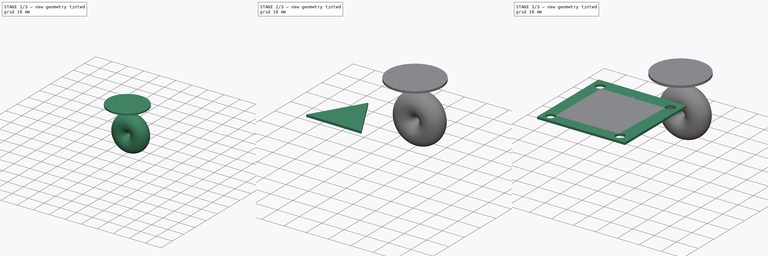
[diagram: build sequence overview — one tinted view per stage of 3, left to right]
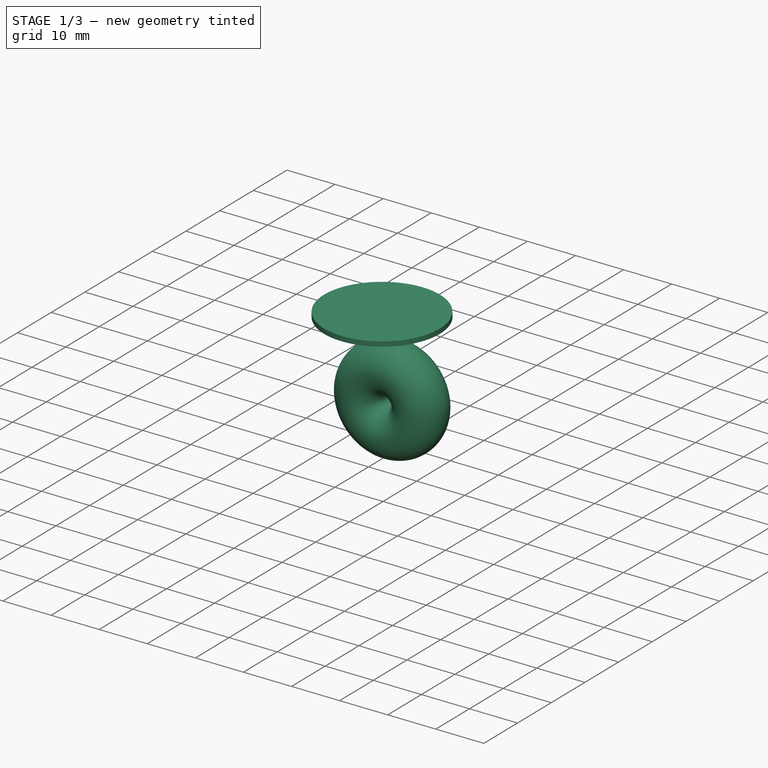
[diagram: stage 1 of 3 — iso view after this stage's code; geometry added in this stage tinted green]
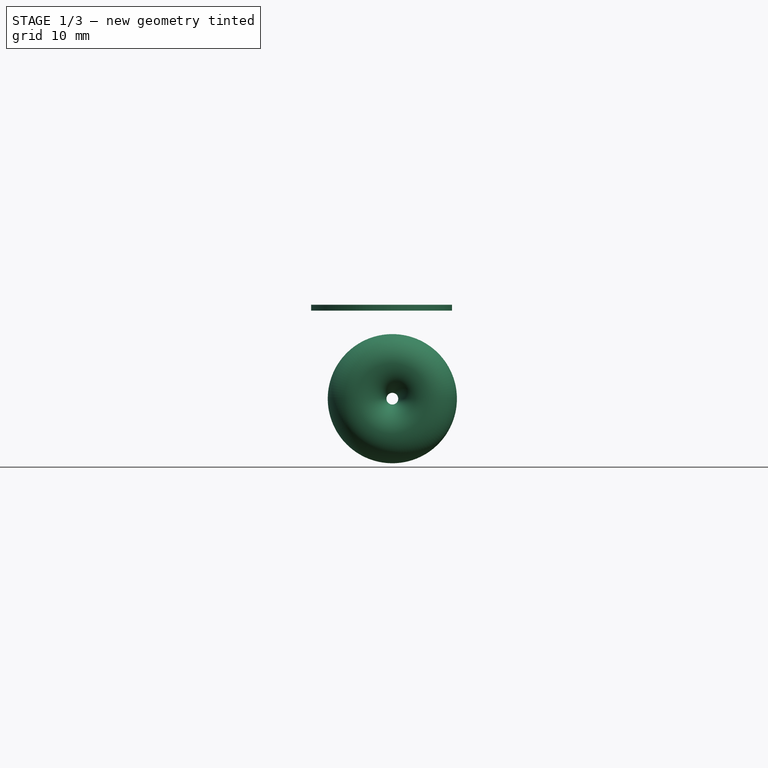
[diagram: stage 1 of 3 — front view after this stage's code; geometry added in this stage tinted green]
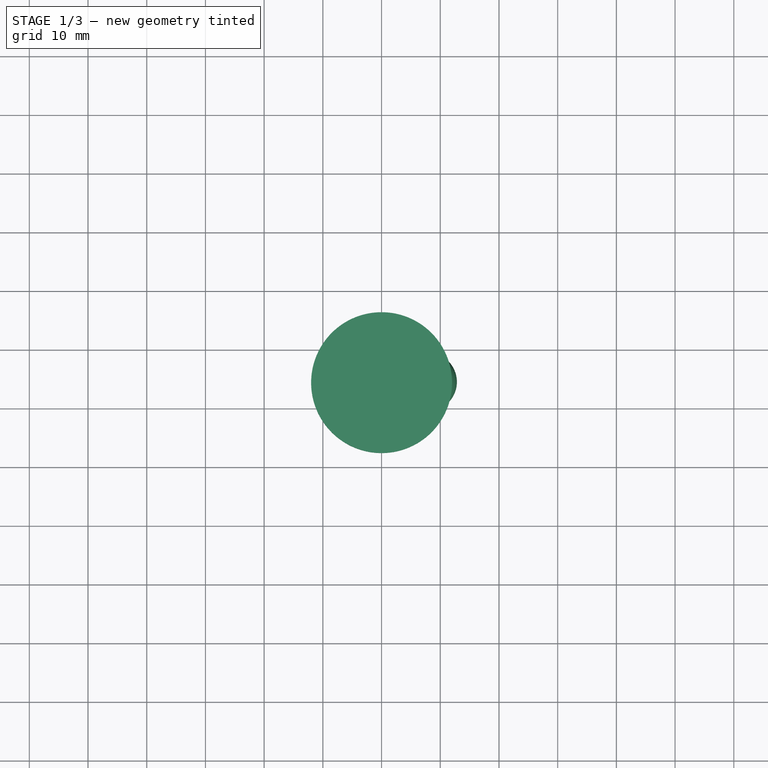
[diagram: stage 1 of 3 — top view after this stage's code; geometry added in this stage tinted green]
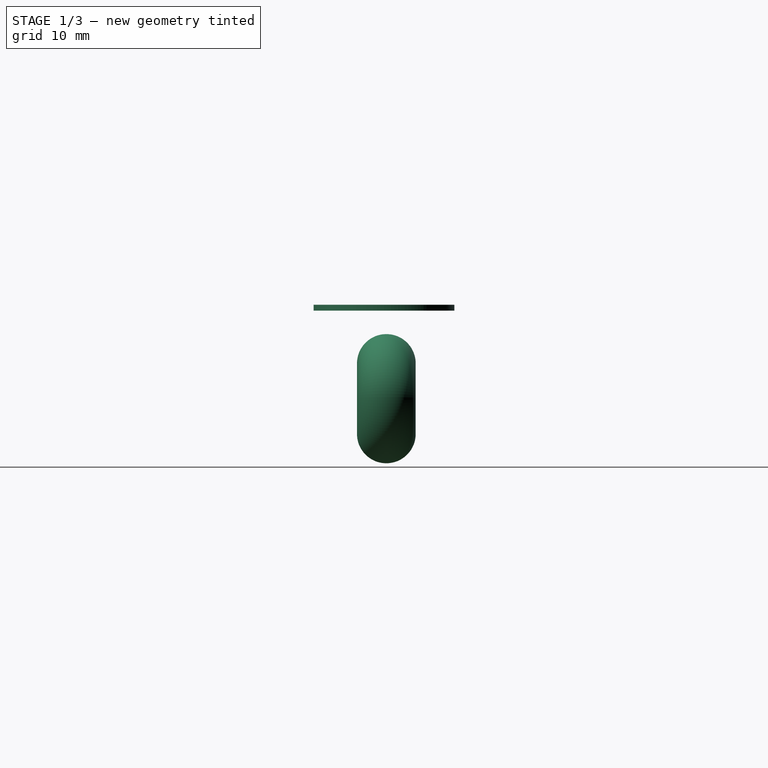
[diagram: stage 1 of 3 — right view after this stage's code; geometry added in this stage tinted green]
FCSTD DOCUMENT  (FreeCAD 0.19R24291 (Git))
Label: rueda_loca
License: All rights reserved
LicenseURL: http://en.wikipedia.org/wiki/All_rights_reserved
objects: Sketcher::SketchObject×3, PartDesign::Pad×3, PartDesign::Body×3, Part::Torus×1, Part::Cylinder×1
note: 14 computed .brp shape members not serialized (recipe doc carries the construction recipe); baked Part::Feature solids carry a one-line shape summary decoded from their .brp

FEATURE [PartDesign::Body] Body002  label="triangle2"
  Group = -> [Sketch003,Pad002]
  Origin = -> Origin002
  Placement = pos=(1,37.9904,-8.23205) rot=(1,0,0;4.71239rad)
  Tip = -> Pad002
FEATURE [Part::Torus] Torus  label="rueda"
  Angle1 = -180
  Angle2 = 180
  Angle3 = 360
  AttacherType = Attacher::AttachEngine3D
  Placement = pos=(1.8355,44.3985,-16) rot=(-0.57735,0.57735,0.57735;2.0944rad)
  Radius1 = 6
  Radius2 = 5
FEATURE [Part::Cylinder] Cylinder  label="base_movil"
  Angle = 360
  AttacherType = Attacher::AttachEngine3D
  Height = 1
  Placement = pos=(0,44,-1) rot=(0,0,1;0rad)
  Radius = 12
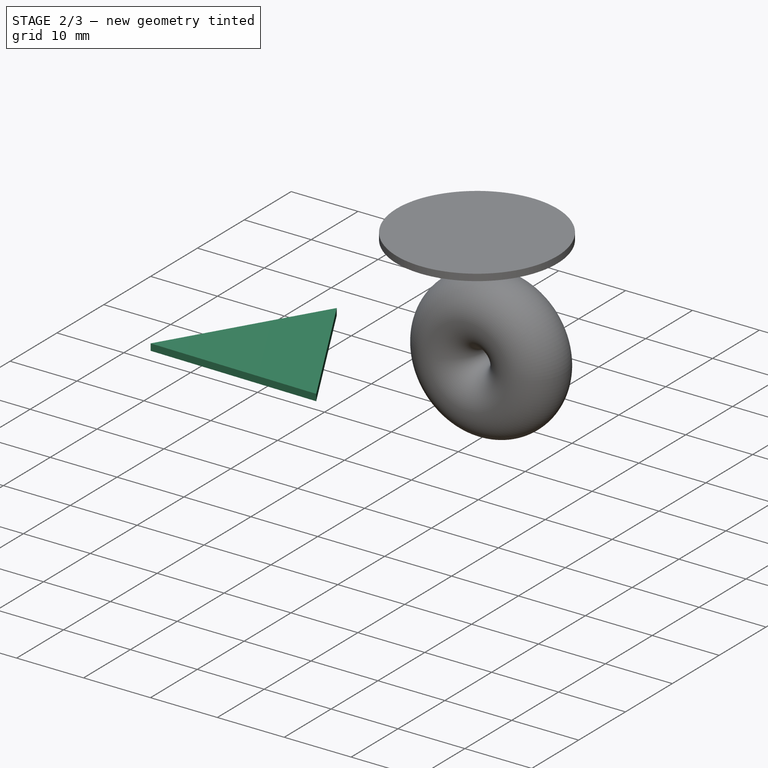
[diagram: stage 2 of 3 — iso view after this stage's code; geometry added in this stage tinted green]
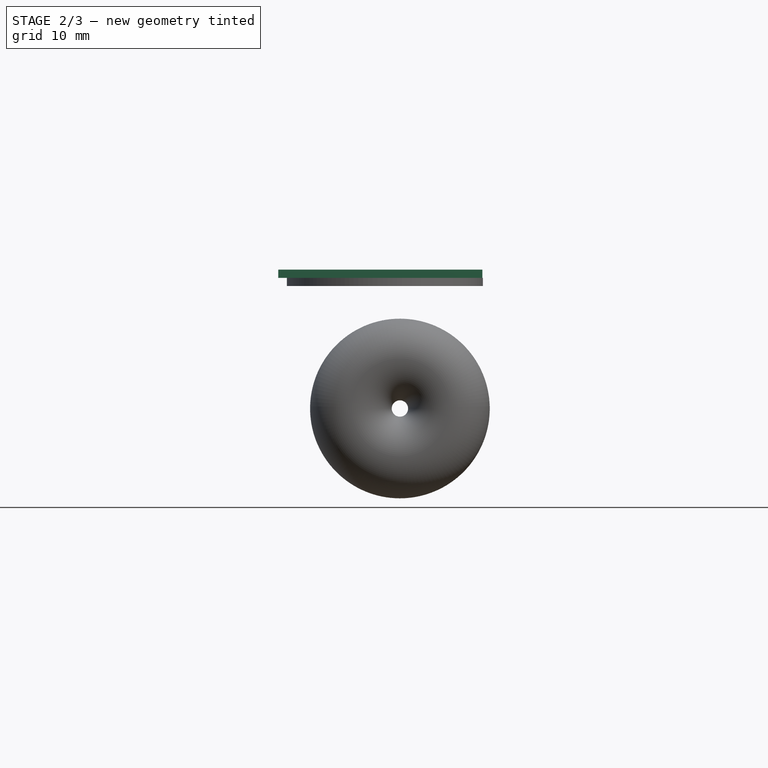
[diagram: stage 2 of 3 — front view after this stage's code; geometry added in this stage tinted green]
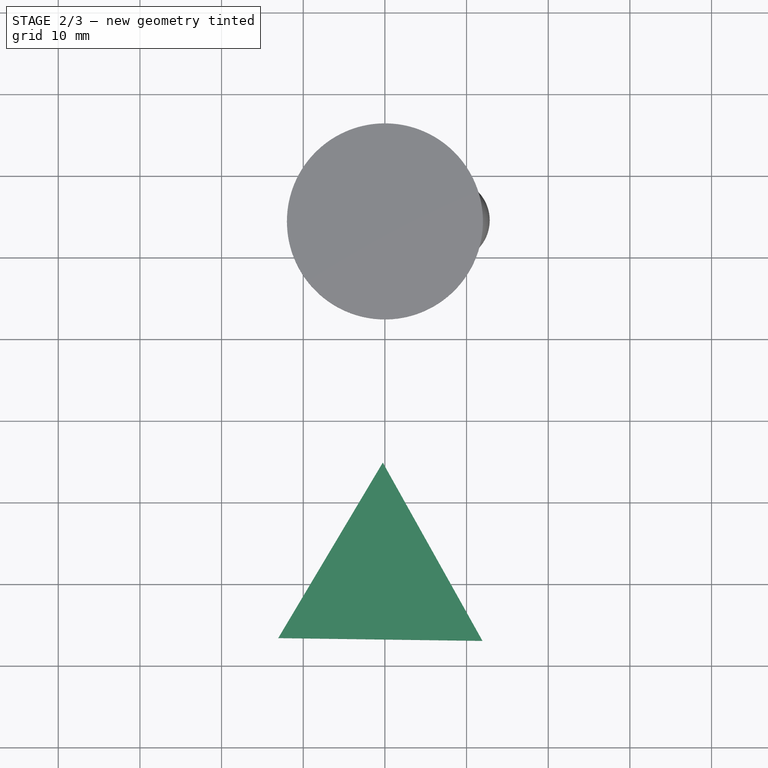
[diagram: stage 2 of 3 — top view after this stage's code; geometry added in this stage tinted green]
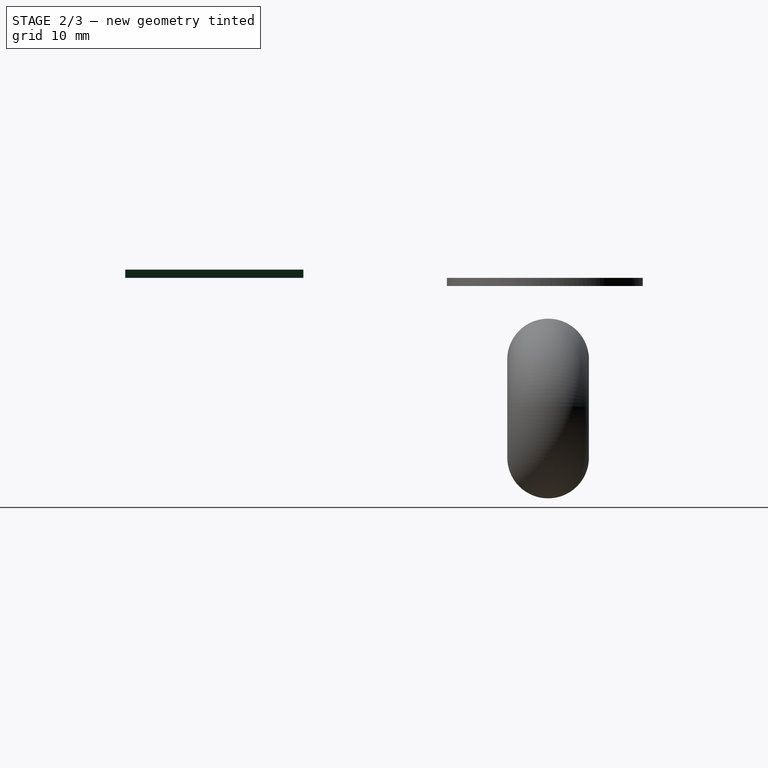
[diagram: stage 2 of 3 — right view after this stage's code; geometry added in this stage tinted green]
FEATURE [PartDesign::Body] Body001  label="triangle1"
  Group = -> [Sketch002,Pad001]
  Origin = -> Origin001
  Placement = pos=(1,50,-9) rot=(1,0,0;4.71239rad)
  Tip = -> Pad001
FEATURE [Sketcher::SketchObject] Sketch003
  FullyConstrained = false
  MapMode = 5
  Support = -> [XY_Plane002]
  sketch-geometry (4):
    g0: LineSegment StartX=11.942 StartY=-7.38734 StartZ=0 EndX=-0.260369 EndY=14.4324 EndZ=0
    g1: LineSegment StartX=-0.260369 StartY=14.4324 StartZ=0 EndX=-13.0556 EndY=-7.04506 EndZ=0
    g2: LineSegment StartX=-13.0556 StartY=-7.04506 StartZ=0 EndX=11.942 EndY=-7.38734 EndZ=0
    g3: Circle CenterX=-0.457983 CenterY=0 CenterZ=0 NormalX=0 NormalY=0 NormalZ=1 AngleXU=0 Radius=14.4338
  constraints (10):
    c: Coincident(g0,g1)
    c: Coincident(g1,g2)
    c: Coincident(g2,g0)
    c: Equal(g0,g1)
    c: Equal(g0,g2)
    c: PointOnObject(g0,g3)
    c: PointOnObject(g1,g3)
    c: PointOnObject(g2,g3)
    c: PointOnObject(g3,g-1)
    c: Distance(g2) = 25
FEATURE [PartDesign::Pad] Pad002
  Direction = (1,1,1)
  Length = 1
  Length2 = 100
  Profile = -> Sketch003
  Type = 0
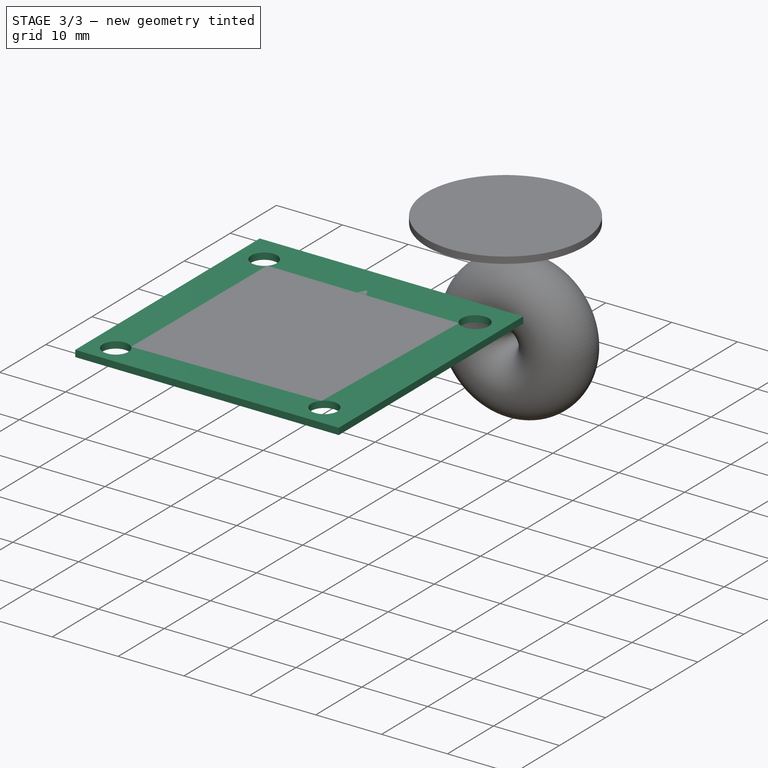
[diagram: stage 3 of 3 — iso view after this stage's code; geometry added in this stage tinted green]
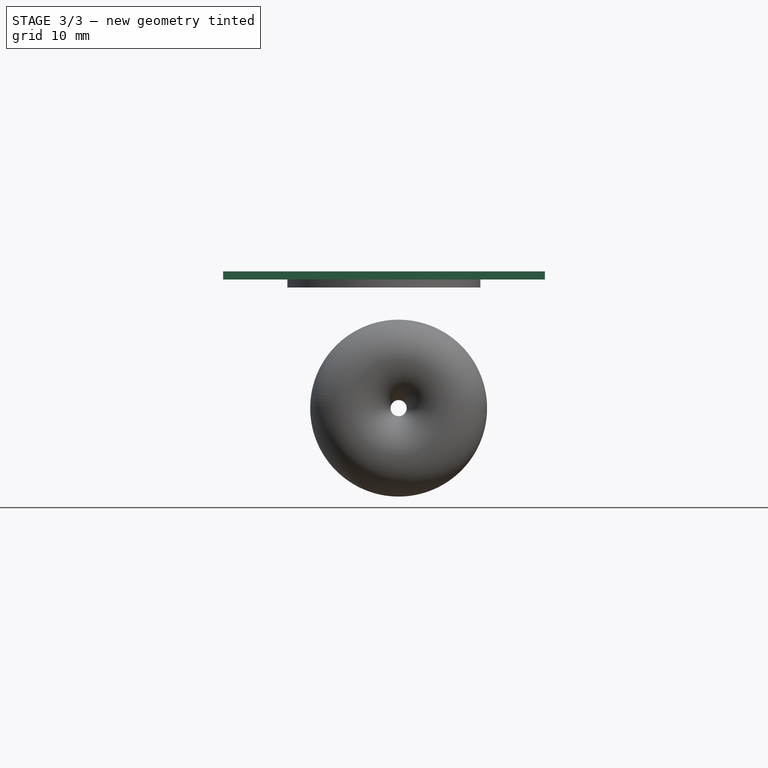
[diagram: stage 3 of 3 — front view after this stage's code; geometry added in this stage tinted green]
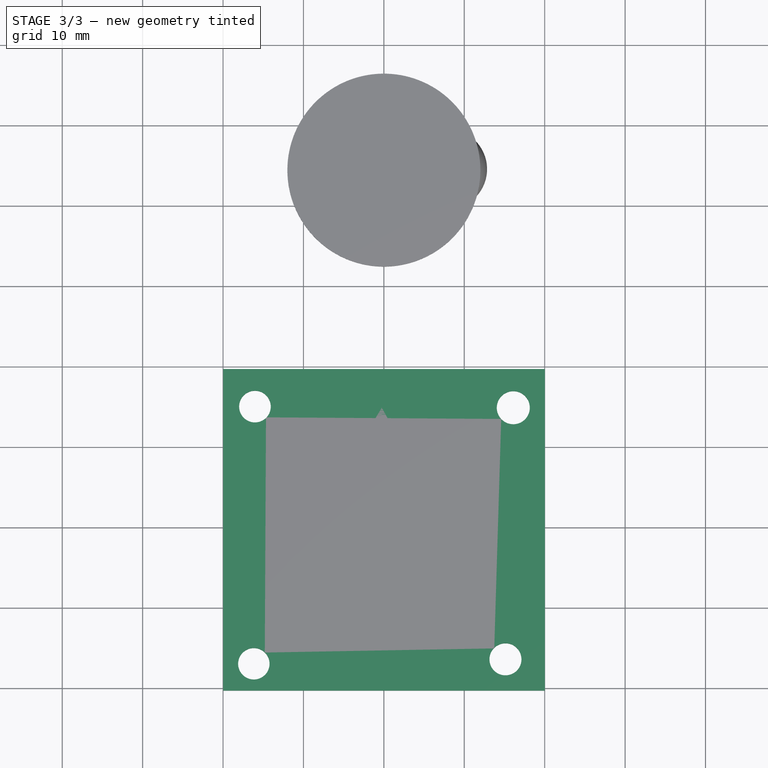
[diagram: stage 3 of 3 — top view after this stage's code; geometry added in this stage tinted green]
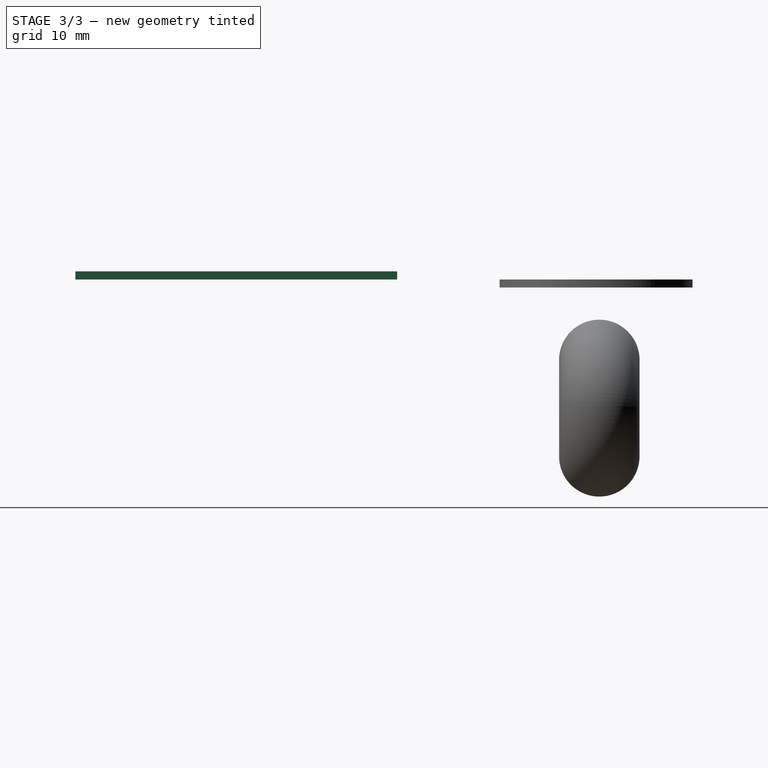
[diagram: stage 3 of 3 — right view after this stage's code; geometry added in this stage tinted green]
FEATURE [Sketcher::SketchObject] Sketch
  FullyConstrained = false
  MapMode = 5
  Support = -> [XY_Plane]
  sketch-geometry (8):
    g0: LineSegment StartX=-19.9829 StartY=19.2492 StartZ=0 EndX=20.0171 EndY=19.2492 EndZ=0
    g1: LineSegment StartX=20.0171 StartY=19.2492 StartZ=0 EndX=20.0171 EndY=-20.7508 EndZ=0
    g2: LineSegment StartX=20.0171 StartY=-20.7508 StartZ=0 EndX=-19.9829 EndY=-20.7508 EndZ=0
    g3: LineSegment StartX=-19.9829 StartY=-20.7508 StartZ=0 EndX=-19.9829 EndY=19.2492 EndZ=0
    g4: Circle CenterX=-16.0323 CenterY=14.5686 CenterZ=0 NormalX=0 NormalY=0 NormalZ=1 AngleXU=0 Radius=1.96692
    g5: Circle CenterX=16.0957 CenterY=14.4295 CenterZ=0 NormalX=0 NormalY=0 NormalZ=1 AngleXU=0 Radius=2.05352
    g6: Circle CenterX=15.1221 CenterY=-16.8639 CenterZ=0 NormalX=0 NormalY=0 NormalZ=1 AngleXU=0 Radius=1.99135
    g7: Circle CenterX=-16.1713 CenterY=-17.4203 CenterZ=0 NormalX=0 NormalY=0 NormalZ=1 AngleXU=0 Radius=1.95211
  constraints (10):
    c: Coincident(g0,g1)
    c: Coincident(g1,g2)
    c: Coincident(g2,g3)
    c: Coincident(g3,g0)
    c: Horizontal(g0)
    c: Horizontal(g2)
    c: Vertical(g1)
    c: Vertical(g3)
    c: DistanceY(g3,g3) = 40
    c: DistanceX(g0,g0) = 40
FEATURE [PartDesign::Pad] Pad
  Direction = (1,1,1)
  Length = 1
  Length2 = 100
  Profile = -> Sketch
  Type = 0
FEATURE [PartDesign::Body] Body  label="base_rueda"
  Group = -> [Sketch,Pad]
  Origin = -> Origin
  Placement = pos=(0,46,0) rot=(0,0,1;0rad)
  Tip = -> Pad
FEATURE [Sketcher::SketchObject] Sketch002
  FullyConstrained = false
  MapMode = 5
  Support = -> [XY_Plane001]
  sketch-geometry (4):
    g0: LineSegment StartX=11.942 StartY=-7.38734 StartZ=0 EndX=-0.260369 EndY=14.4324 EndZ=0
    g1: LineSegment StartX=-0.260369 StartY=14.4324 StartZ=0 EndX=-13.0556 EndY=-7.04506 EndZ=0
    g2: LineSegment StartX=-13.0556 StartY=-7.04506 StartZ=0 EndX=11.942 EndY=-7.38734 EndZ=0
    g3: Circle CenterX=-0.457983 CenterY=0 CenterZ=0 NormalX=0 NormalY=0 NormalZ=1 AngleXU=0 Radius=14.4338
  constraints (10):
    c: Coincident(g0,g1)
    c: Coincident(g1,g2)
    c: Coincident(g2,g0)
    c: Equal(g0,g1)
    c: Equal(g0,g2)
    c: PointOnObject(g0,g3)
    c: PointOnObject(g1,g3)
    c: PointOnObject(g2,g3)
    c: PointOnObject(g3,g-1)
    c: Distance(g2) = 25
FEATURE [PartDesign::Pad] Pad001
  Direction = (1,1,1)
  Length = 1
  Length2 = 100
  Profile = -> Sketch002
  Type = 0
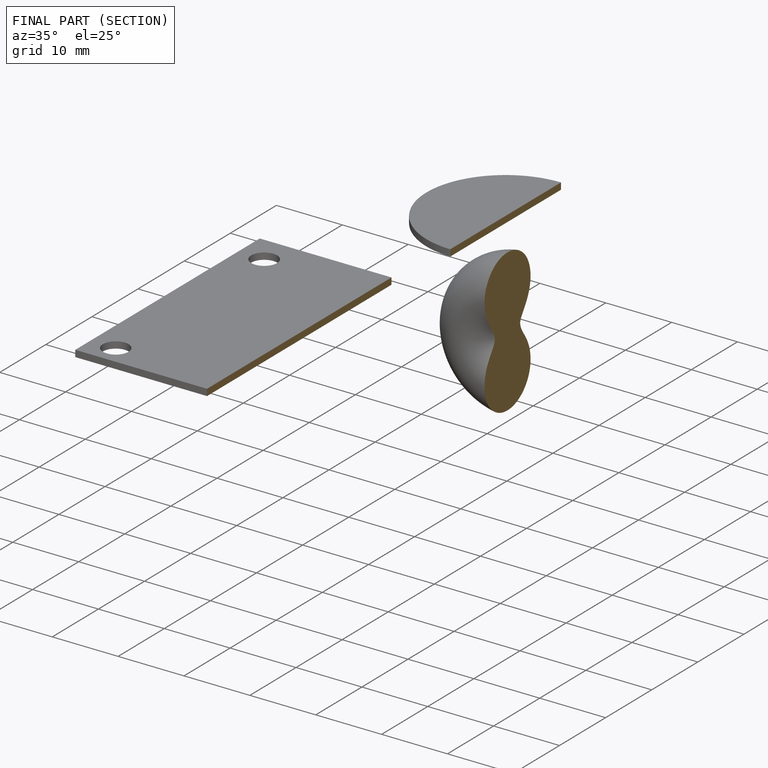
[diagram: finished part — half-section view (interior)]
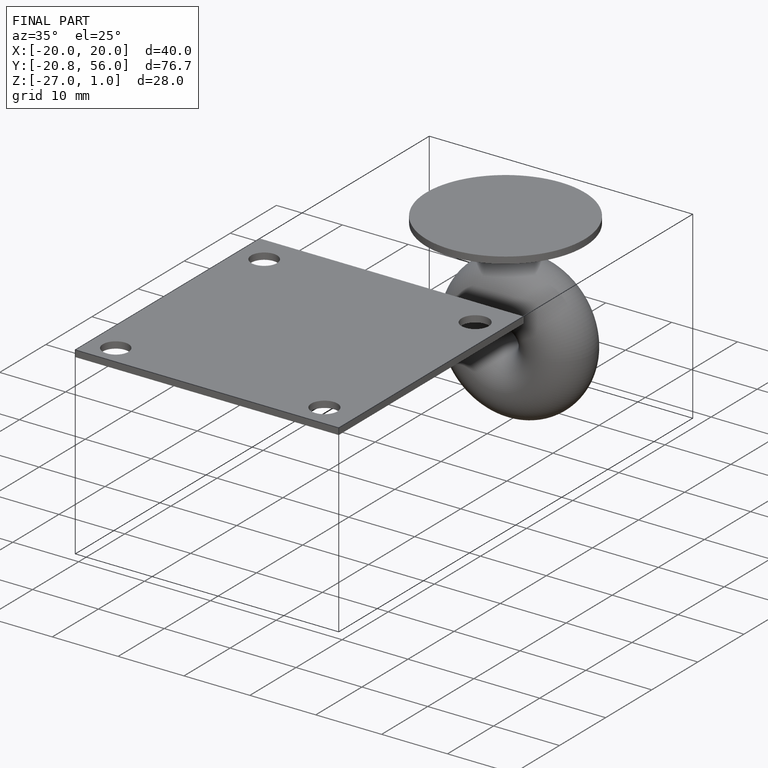
[diagram: finished part — iso view with bounding-box wireframe]
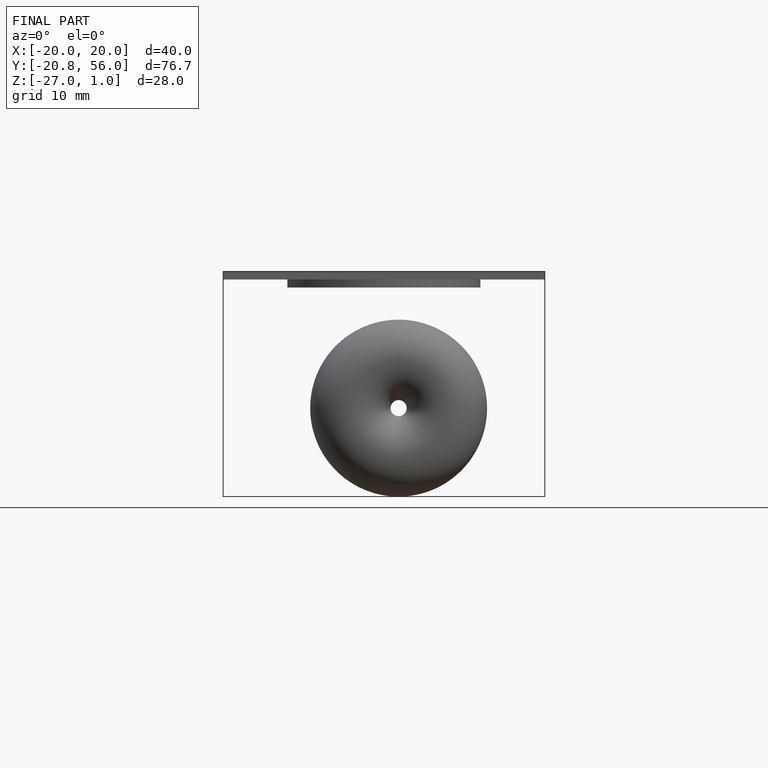
[diagram: finished part — front view with bounding-box wireframe]
